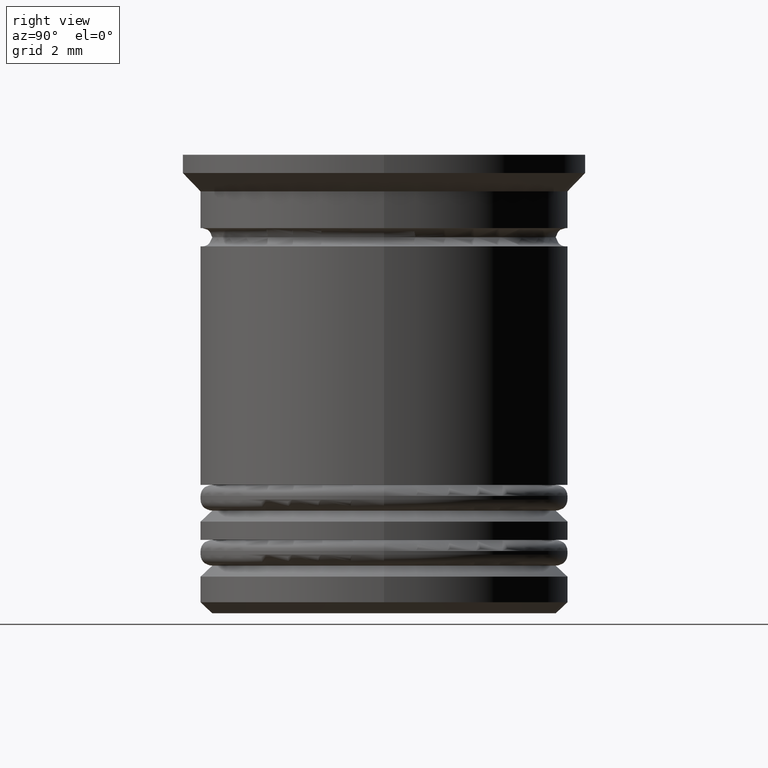
[diagram: clean part render]
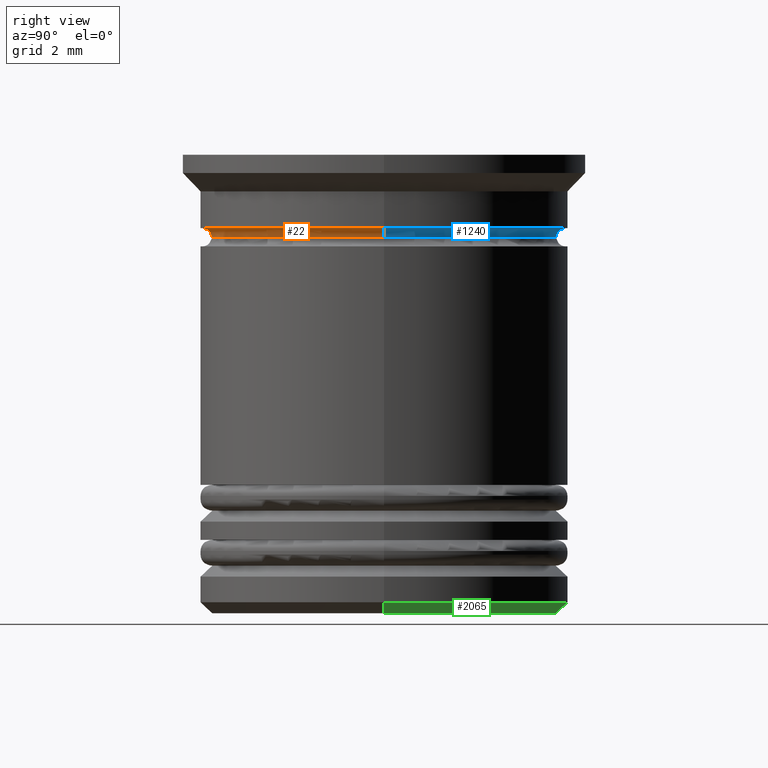
[diagram: same view with three faces highlighted in distinct colors, each labeled with its STEP entity id]
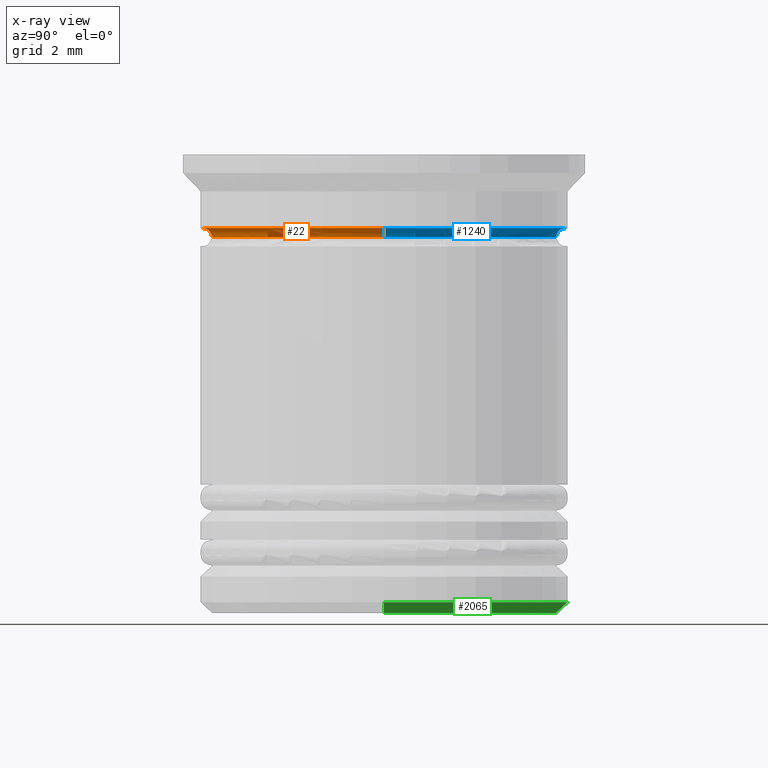
[diagram: x-ray of the same camera — body ghosted, the three highlighted faces saturated]
A machine part, right view with three faces highlighted in distinct colors.
The next image is the same camera in x-ray (body ghosted, the three faces saturated) — at least one of them is partly hidden behind the body in this view.
Their STEP definitions:

[orange] entity #22 — the highlighted toroidal blend (fillet) surface has major radius 4.95 mm and minor (blend) radius 0.25 mm.
#22 = ADVANCED_FACE ( 'NONE', ( #1861 ), #971, .F. ) ;
#51 = DIRECTION ( 'NONE',  ( -1.000000000000000000, 1.224646799147353454E-16, 0.000000000000000000 ) ) ;
#70 = DIRECTION ( 'NONE',  ( -0.000000000000000000, -0.000000000000000000, 1.000000000000000000 ) ) ;
#120 = VERTEX_POINT ( 'NONE', #895 ) ;
#121 = EDGE_CURVE ( 'NONE', #120, #443, #1146, .T. ) ;
#246 = CARTESIAN_POINT ( 'NONE',  ( 4.950000000000000178, 0.000000000000000000, -2.000000000000000000 ) ) ;
#251 = EDGE_CURVE ( 'NONE', #720, #1746, #395, .T. ) ;
#272 = DIRECTION ( 'NONE',  ( -0.000000000000000000, -0.000000000000000000, 1.000000000000000000 ) ) ;
#278 = DIRECTION ( 'NONE',  ( 1.000000000000000000, 0.000000000000000000, 0.000000000000000000 ) ) ;
#295 = CIRCLE ( 'NONE', #1048, 4.950000000000000178 ) ;
#331 = CIRCLE ( 'NONE', #1813, 4.700000000000000178 ) ;
#391 = CARTESIAN_POINT ( 'NONE',  ( -4.950000000000000178, 6.062001655779398511E-16, -2.250000000000000444 ) ) ;
#395 = CIRCLE ( 'NONE', #1278, 0.2500000000000002220 ) ;
#443 = VERTEX_POINT ( 'NONE', #1165 ) ;
#445 = ORIENTED_EDGE ( 'NONE', *, *, #857, .F. ) ;
#474 = CARTESIAN_POINT ( 'NONE',  ( 4.700000000000000178, 0.000000000000000000, -2.250000000000000444 ) ) ;
#674 = EDGE_LOOP ( 'NONE', ( #1459, #1034, #1815, #445 ) ) ;
#720 = VERTEX_POINT ( 'NONE', #246 ) ;
#734 = DIRECTION ( 'NONE',  ( 1.224646799147353207E-16, 1.000000000000000000, 0.000000000000000000 ) ) ;
#831 = DIRECTION ( 'NONE',  ( 0.000000000000000000, 0.000000000000000000, -1.000000000000000000 ) ) ;
#856 = CARTESIAN_POINT ( 'NONE',  ( 4.950000000000000178, 0.000000000000000000, -2.250000000000000444 ) ) ;
#857 = EDGE_CURVE ( 'NONE', #120, #720, #295, .T. ) ;
#878 = AXIS2_PLACEMENT_3D ( 'NONE', #1245, #272, #1553 ) ;
#895 = CARTESIAN_POINT ( 'NONE',  ( -4.950000000000000178, 6.062001655779398511E-16, -2.000000000000000000 ) ) ;
#937 = AXIS2_PLACEMENT_3D ( 'NONE', #391, #734, #51 ) ;
#971 = TOROIDAL_SURFACE ( 'NONE', #878, 4.950000000000000178, 0.2500000000000002220 ) ;
#1034 = ORIENTED_EDGE ( 'NONE', *, *, #1536, .T. ) ;
#1048 = AXIS2_PLACEMENT_3D ( 'NONE', #1725, #1561, #278 ) ;
#1146 = CIRCLE ( 'NONE', #937, 0.2500000000000002220 ) ;
#1165 = CARTESIAN_POINT ( 'NONE',  ( -4.700000000000000178, 5.755839955992559655E-16, -2.250000000000000444 ) ) ;
#1245 = CARTESIAN_POINT ( 'NONE',  ( 0.000000000000000000, 0.000000000000000000, -2.250000000000000444 ) ) ;
#1278 = AXIS2_PLACEMENT_3D ( 'NONE', #856, #1977, #831 ) ;
#1372 = CARTESIAN_POINT ( 'NONE',  ( 0.000000000000000000, 0.000000000000000000, -2.250000000000000444 ) ) ;
#1459 = ORIENTED_EDGE ( 'NONE', *, *, #121, .T. ) ;
#1536 = EDGE_CURVE ( 'NONE', #443, #1746, #331, .T. ) ;
#1553 = DIRECTION ( 'NONE',  ( 1.000000000000000000, 0.000000000000000000, 0.000000000000000000 ) ) ;
#1561 = DIRECTION ( 'NONE',  ( -0.000000000000000000, -0.000000000000000000, 1.000000000000000000 ) ) ;
#1725 = CARTESIAN_POINT ( 'NONE',  ( 0.000000000000000000, 0.000000000000000000, -2.000000000000000000 ) ) ;
#1746 = VERTEX_POINT ( 'NONE', #474 ) ;
#1813 = AXIS2_PLACEMENT_3D ( 'NONE', #1372, #70, #2000 ) ;
#1815 = ORIENTED_EDGE ( 'NONE', *, *, #251, .F. ) ;
#1861 = FACE_OUTER_BOUND ( 'NONE', #674, .T. ) ;
#1977 = DIRECTION ( 'NONE',  ( 0.000000000000000000, -1.000000000000000000, 0.000000000000000000 ) ) ;
#2000 = DIRECTION ( 'NONE',  ( 1.000000000000000000, 0.000000000000000000, 0.000000000000000000 ) ) ;

[blue] entity #1240 — the highlighted toroidal blend (fillet) surface has major radius 4.95 mm and minor (blend) radius 0.25 mm.
#17 = AXIS2_PLACEMENT_3D ( 'NONE', #1248, #946, #1396 ) ;
#51 = DIRECTION ( 'NONE',  ( -1.000000000000000000, 1.224646799147353454E-16, 0.000000000000000000 ) ) ;
#120 = VERTEX_POINT ( 'NONE', #895 ) ;
#121 = EDGE_CURVE ( 'NONE', #120, #443, #1146, .T. ) ;
#201 = EDGE_CURVE ( 'NONE', #720, #120, #231, .T. ) ;
#223 = DIRECTION ( 'NONE',  ( 1.000000000000000000, 0.000000000000000000, 0.000000000000000000 ) ) ;
#231 = CIRCLE ( 'NONE', #1417, 4.950000000000000178 ) ;
#246 = CARTESIAN_POINT ( 'NONE',  ( 4.950000000000000178, 0.000000000000000000, -2.000000000000000000 ) ) ;
#251 = EDGE_CURVE ( 'NONE', #720, #1746, #395, .T. ) ;
#257 = CARTESIAN_POINT ( 'NONE',  ( 0.000000000000000000, 0.000000000000000000, -2.250000000000000444 ) ) ;
#384 = ORIENTED_EDGE ( 'NONE', *, *, #201, .F. ) ;
#385 = DIRECTION ( 'NONE',  ( -0.000000000000000000, -0.000000000000000000, 1.000000000000000000 ) ) ;
#391 = CARTESIAN_POINT ( 'NONE',  ( -4.950000000000000178, 6.062001655779398511E-16, -2.250000000000000444 ) ) ;
#395 = CIRCLE ( 'NONE', #1278, 0.2500000000000002220 ) ;
#428 = ORIENTED_EDGE ( 'NONE', *, *, #251, .T. ) ;
#443 = VERTEX_POINT ( 'NONE', #1165 ) ;
#474 = CARTESIAN_POINT ( 'NONE',  ( 4.700000000000000178, 0.000000000000000000, -2.250000000000000444 ) ) ;
#535 = CIRCLE ( 'NONE', #1711, 4.700000000000000178 ) ;
#556 = EDGE_LOOP ( 'NONE', ( #428, #1671, #926, #384 ) ) ;
#677 = EDGE_CURVE ( 'NONE', #1746, #443, #535, .T. ) ;
#720 = VERTEX_POINT ( 'NONE', #246 ) ;
#734 = DIRECTION ( 'NONE',  ( 1.224646799147353207E-16, 1.000000000000000000, 0.000000000000000000 ) ) ;
#831 = DIRECTION ( 'NONE',  ( 0.000000000000000000, 0.000000000000000000, -1.000000000000000000 ) ) ;
#856 = CARTESIAN_POINT ( 'NONE',  ( 4.950000000000000178, 0.000000000000000000, -2.250000000000000444 ) ) ;
#895 = CARTESIAN_POINT ( 'NONE',  ( -4.950000000000000178, 6.062001655779398511E-16, -2.000000000000000000 ) ) ;
#926 = ORIENTED_EDGE ( 'NONE', *, *, #121, .F. ) ;
#937 = AXIS2_PLACEMENT_3D ( 'NONE', #391, #734, #51 ) ;
#946 = DIRECTION ( 'NONE',  ( -0.000000000000000000, -0.000000000000000000, 1.000000000000000000 ) ) ;
#1146 = CIRCLE ( 'NONE', #937, 0.2500000000000002220 ) ;
#1165 = CARTESIAN_POINT ( 'NONE',  ( -4.700000000000000178, 5.755839955992559655E-16, -2.250000000000000444 ) ) ;
#1240 = ADVANCED_FACE ( 'NONE', ( #2037 ), #1680, .F. ) ;
#1248 = CARTESIAN_POINT ( 'NONE',  ( 0.000000000000000000, 0.000000000000000000, -2.250000000000000444 ) ) ;
#1278 = AXIS2_PLACEMENT_3D ( 'NONE', #856, #1977, #831 ) ;
#1396 = DIRECTION ( 'NONE',  ( 1.000000000000000000, 0.000000000000000000, 0.000000000000000000 ) ) ;
#1417 = AXIS2_PLACEMENT_3D ( 'NONE', #1778, #2049, #1903 ) ;
#1671 = ORIENTED_EDGE ( 'NONE', *, *, #677, .T. ) ;
#1680 = TOROIDAL_SURFACE ( 'NONE', #17, 4.950000000000000178, 0.2500000000000002220 ) ;
#1711 = AXIS2_PLACEMENT_3D ( 'NONE', #257, #385, #223 ) ;
#1746 = VERTEX_POINT ( 'NONE', #474 ) ;
#1778 = CARTESIAN_POINT ( 'NONE',  ( 0.000000000000000000, 0.000000000000000000, -2.000000000000000000 ) ) ;
#1903 = DIRECTION ( 'NONE',  ( 1.000000000000000000, 0.000000000000000000, 0.000000000000000000 ) ) ;
#1977 = DIRECTION ( 'NONE',  ( 0.000000000000000000, -1.000000000000000000, 0.000000000000000000 ) ) ;
#2037 = FACE_OUTER_BOUND ( 'NONE', #556, .T. ) ;
#2049 = DIRECTION ( 'NONE',  ( -0.000000000000000000, -0.000000000000000000, 1.000000000000000000 ) ) ;

[green] entity #2065 — the highlighted conical surface has half-angle 45 deg.
#14 = AXIS2_PLACEMENT_3D ( 'NONE', #1989, #1031, #1976 ) ;
#69 = DIRECTION ( 'NONE',  ( -0.7071067811865474617, 8.659560562354932858E-17, 0.7071067811865474617 ) ) ;
#160 = AXIS2_PLACEMENT_3D ( 'NONE', #2070, #477, #1754 ) ;
#310 = EDGE_CURVE ( 'NONE', #645, #870, #1873, .T. ) ;
#314 = EDGE_CURVE ( 'NONE', #645, #1851, #1356, .T. ) ;
#356 = VECTOR ( 'NONE', #69, 1000.000000000000114 ) ;
#363 = VECTOR ( 'NONE', #1181, 1000.000000000000114 ) ;
#402 = CONICAL_SURFACE ( 'NONE', #160, 5.000000000000000888, 0.7853981633974482790 ) ;
#477 = DIRECTION ( 'NONE',  ( -0.000000000000000000, -0.000000000000000000, 1.000000000000000000 ) ) ;
#526 = CARTESIAN_POINT ( 'NONE',  ( -5.000000000000000888, 6.123233995736767268E-16, -12.19999999999999929 ) ) ;
#625 = FACE_OUTER_BOUND ( 'NONE', #1047, .T. ) ;
#645 = VERTEX_POINT ( 'NONE', #1213 ) ;
#754 = DIRECTION ( 'NONE',  ( -1.000000000000000000, 0.000000000000000000, 0.000000000000000000 ) ) ;
#816 = ORIENTED_EDGE ( 'NONE', *, *, #314, .T. ) ;
#864 = CARTESIAN_POINT ( 'NONE',  ( -5.000000000000000888, 6.123233995736767268E-16, -12.19999999999999929 ) ) ;
#870 = VERTEX_POINT ( 'NONE', #1269 ) ;
#911 = CIRCLE ( 'NONE', #973, 5.000000000000000888 ) ;
#973 = AXIS2_PLACEMENT_3D ( 'NONE', #1407, #1098, #754 ) ;
#1031 = DIRECTION ( 'NONE',  ( 0.000000000000000000, 0.000000000000000000, -1.000000000000000000 ) ) ;
#1047 = EDGE_LOOP ( 'NONE', ( #1162, #816, #1867, #1359 ) ) ;
#1098 = DIRECTION ( 'NONE',  ( -0.000000000000000000, -0.000000000000000000, 1.000000000000000000 ) ) ;
#1100 = EDGE_CURVE ( 'NONE', #870, #1303, #1337, .T. ) ;
#1162 = ORIENTED_EDGE ( 'NONE', *, *, #310, .F. ) ;
#1181 = DIRECTION ( 'NONE',  ( 0.7071067811865474617, 0.000000000000000000, 0.7071067811865474617 ) ) ;
#1213 = CARTESIAN_POINT ( 'NONE',  ( -4.699999999999999289, 5.939536975864662969E-16, -12.50000000000000000 ) ) ;
#1269 = CARTESIAN_POINT ( 'NONE',  ( 4.699999999999999289, 0.000000000000000000, -12.50000000000000000 ) ) ;
#1303 = VERTEX_POINT ( 'NONE', #2085 ) ;
#1337 = LINE ( 'NONE', #1511, #363 ) ;
#1356 = LINE ( 'NONE', #864, #356 ) ;
#1359 = ORIENTED_EDGE ( 'NONE', *, *, #1100, .F. ) ;
#1407 = CARTESIAN_POINT ( 'NONE',  ( 0.000000000000000000, 0.000000000000000000, -12.19999999999999929 ) ) ;
#1511 = CARTESIAN_POINT ( 'NONE',  ( 5.000000000000000888, 0.000000000000000000, -12.19999999999999929 ) ) ;
#1577 = EDGE_CURVE ( 'NONE', #1303, #1851, #911, .T. ) ;
#1754 = DIRECTION ( 'NONE',  ( 1.000000000000000000, 0.000000000000000000, 0.000000000000000000 ) ) ;
#1851 = VERTEX_POINT ( 'NONE', #526 ) ;
#1867 = ORIENTED_EDGE ( 'NONE', *, *, #1577, .F. ) ;
#1873 = CIRCLE ( 'NONE', #14, 4.699999999999999289 ) ;
#1976 = DIRECTION ( 'NONE',  ( -1.000000000000000000, 0.000000000000000000, 0.000000000000000000 ) ) ;
#1989 = CARTESIAN_POINT ( 'NONE',  ( 0.000000000000000000, 0.000000000000000000, -12.50000000000000000 ) ) ;
#2065 = ADVANCED_FACE ( 'NONE', ( #625 ), #402, .T. ) ;
#2070 = CARTESIAN_POINT ( 'NONE',  ( 0.000000000000000000, 0.000000000000000000, -12.19999999999999929 ) ) ;
#2085 = CARTESIAN_POINT ( 'NONE',  ( 5.000000000000000888, 0.000000000000000000, -12.19999999999999929 ) ) ;